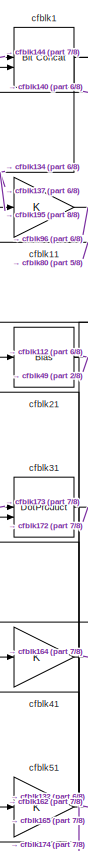
[diagram: root canvas - part 1/8, top left region]
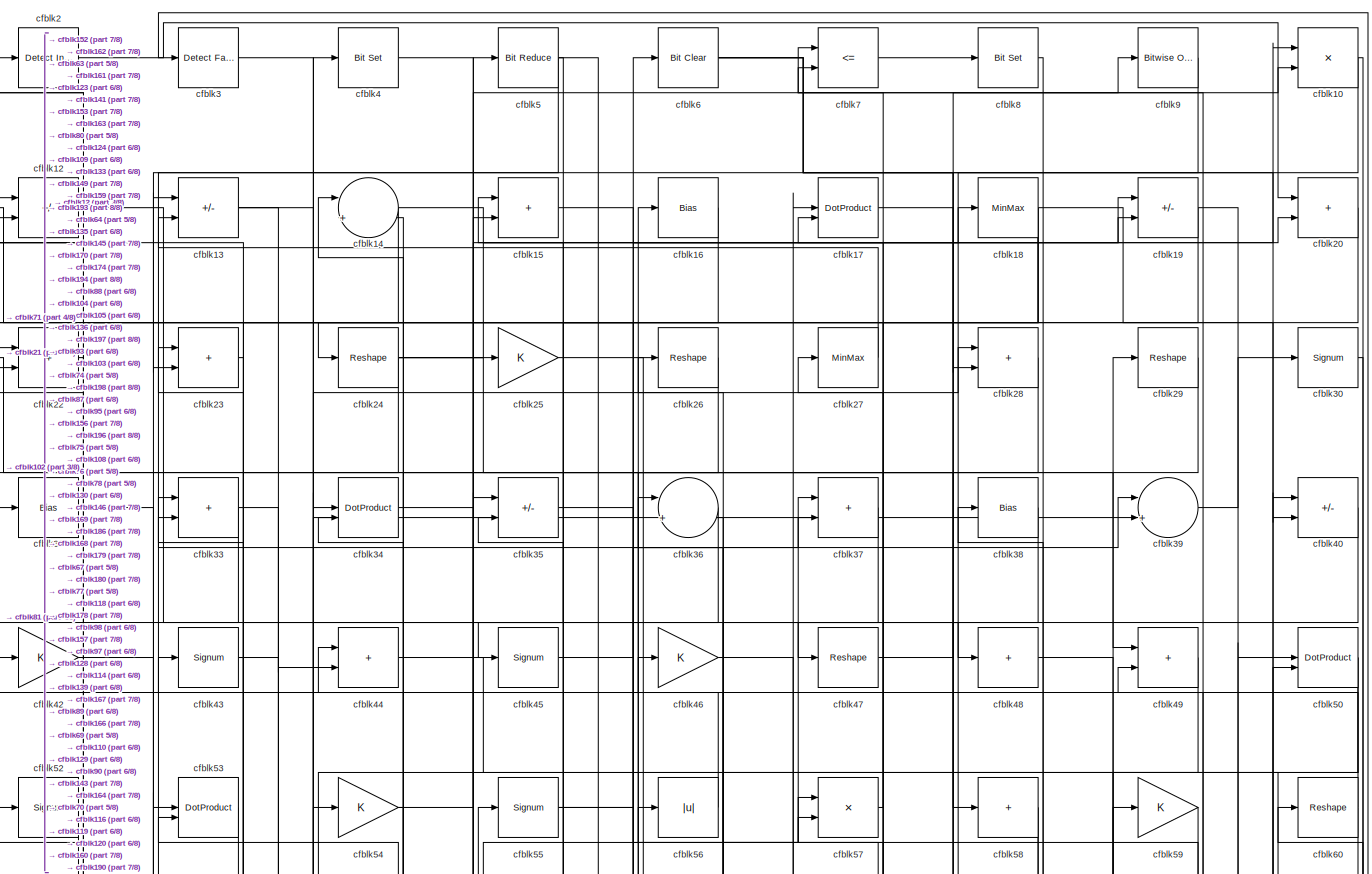
[diagram: root canvas - part 2/8, full width, top band]
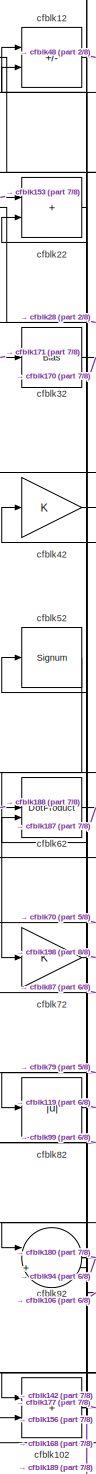
[diagram: root canvas - part 3/8, top left region]
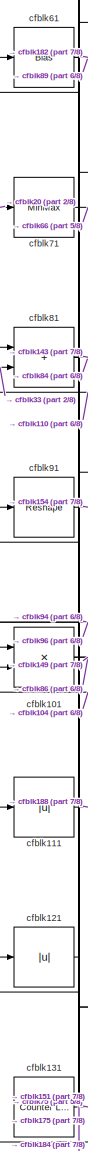
[diagram: root canvas - part 4/8, middle left region]
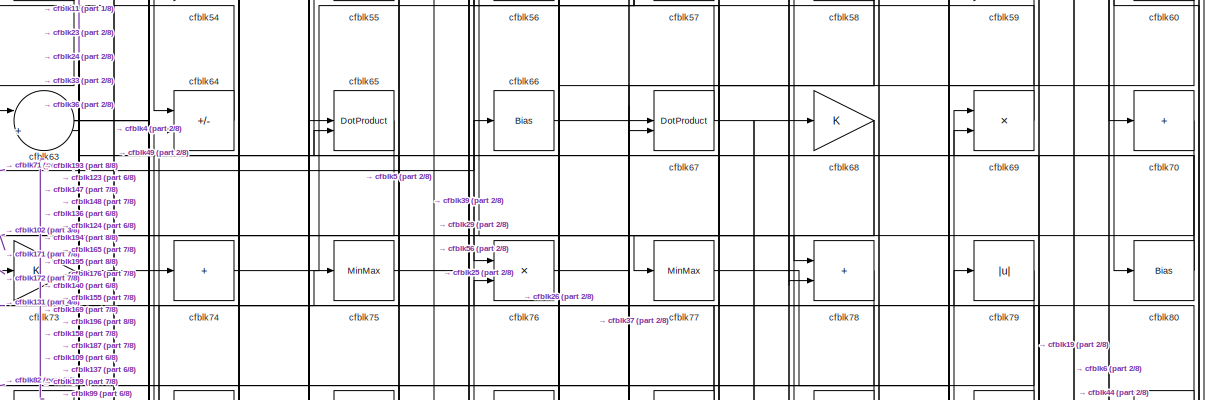
[diagram: root canvas - part 5/8, full width, middle band]
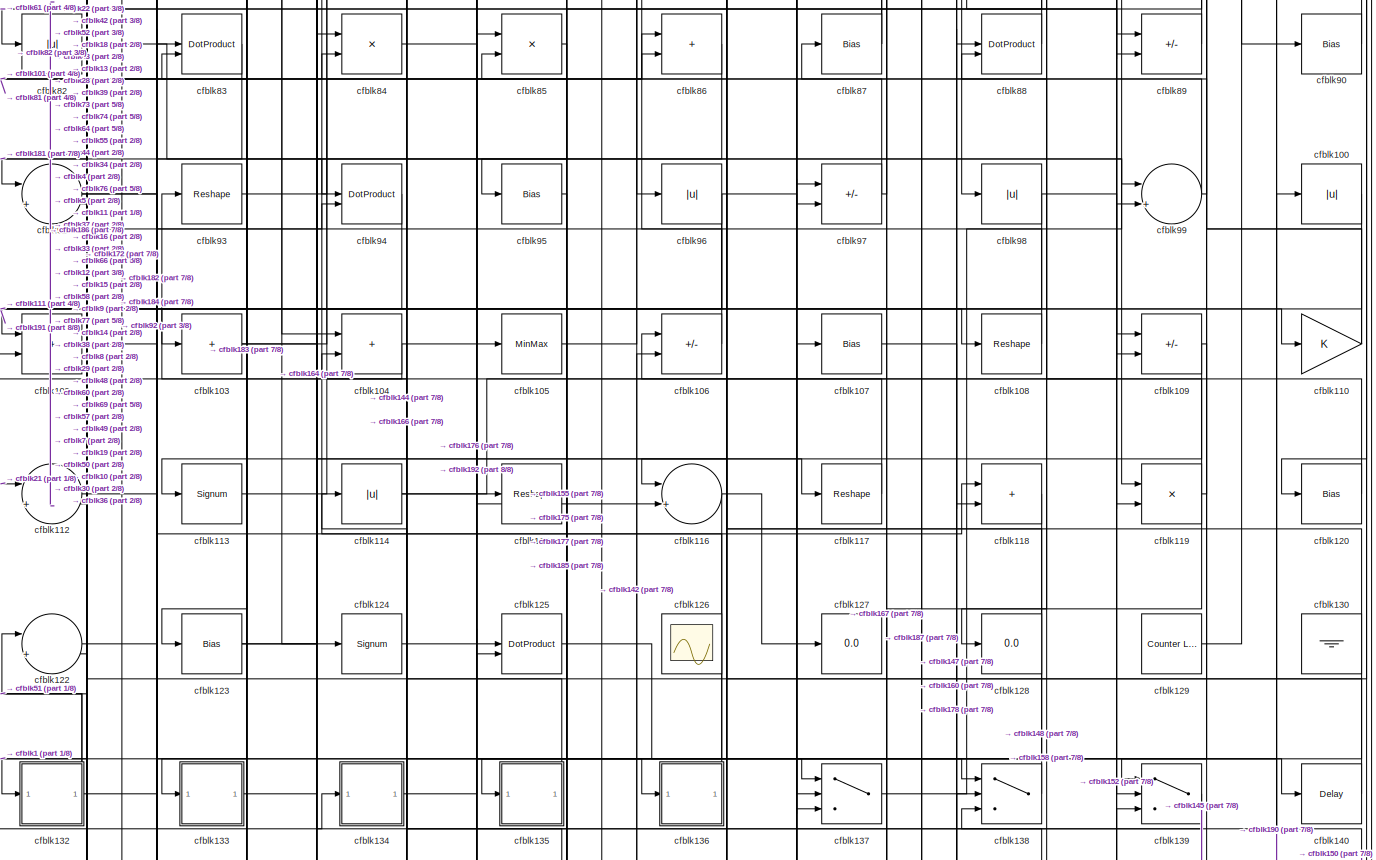
[diagram: root canvas - part 6/8, full width, middle band]
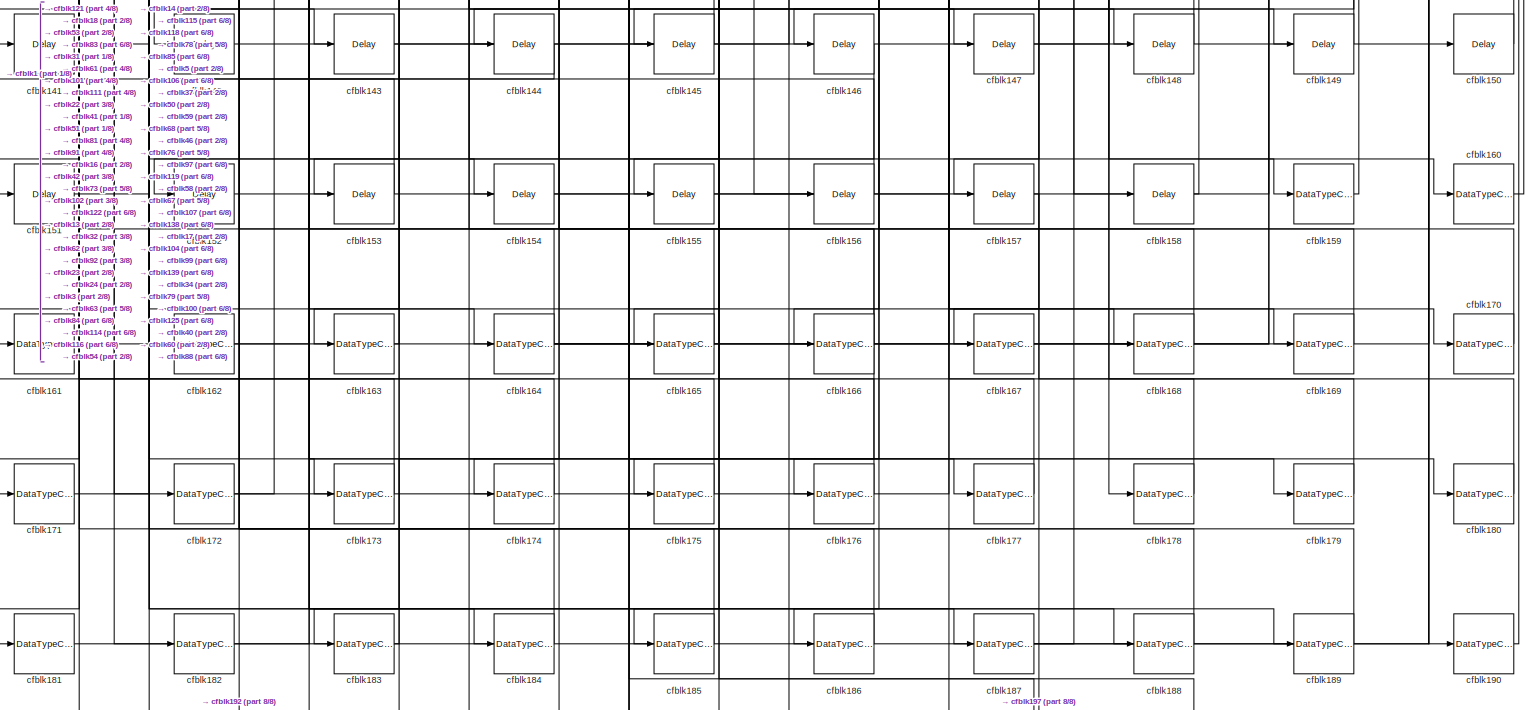
[diagram: root canvas - part 7/8, full width, bottom band]
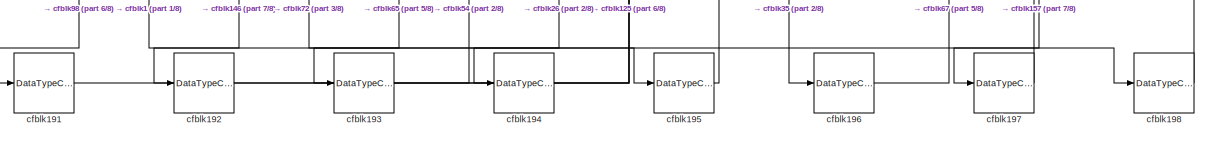
[diagram: root canvas - part 8/8, full width, bottom band]
MODEL slx_8a1410aba5ab
KIND model
CONFIG AbsTol = auto
CONFIG EnableMultiTasking = off
CONFIG FixedStep = auto
CONFIG MaxStep = auto
CONFIG MinStep = auto
CONFIG RelTol = 1e-3
CONFIG SampleTimeConstraint = Unconstrained
CONFIG SolverName = VariableStepAuto
CONFIG StartTime = 0.0
CONFIG StopTime = 10.0
BLOCK [Reference] cfblk1  REF=hdlsllib/Logic and Bit
Operations/Bit Concat
  SourceBlock = hdlsllib/Logic and Bit\nOperations/Bit Concat
  SourceType = Bit Concat
BLOCK [Product] cfblk10
  Inputs = */
  RndMeth = Zero
  SaturateOnIntegerOverflow = on
BLOCK [Abs] cfblk100
  SaturateOnIntegerOverflow = off
BLOCK [Product] cfblk101
  Inputs = */
  RndMeth = Zero
  SaturateOnIntegerOverflow = on
BLOCK [Sum] cfblk102
  IconShape = rectangular
BLOCK [Sum] cfblk103
  IconShape = rectangular
  Inputs = +
BLOCK [Sum] cfblk104
  IconShape = rectangular
BLOCK [MinMax] cfblk105
BLOCK [Sum] cfblk106
  IconShape = rectangular
  Inputs = +-
BLOCK [Bias] cfblk107
  Bias = 0.0
  SaturateOnIntegerOverflow = off
BLOCK [Reshape] cfblk108
BLOCK [Sum] cfblk109
  IconShape = rectangular
  Inputs = +-
BLOCK [Gain] cfblk11
BLOCK [Gain] cfblk110
BLOCK [Abs] cfblk111
  SaturateOnIntegerOverflow = off
BLOCK [Sum] cfblk112
  Inputs = |++
BLOCK [Signum] cfblk113
BLOCK [Abs] cfblk114
  SaturateOnIntegerOverflow = off
BLOCK [Reshape] cfblk115
BLOCK [Sum] cfblk116
  Inputs = |++
BLOCK [Reshape] cfblk117
BLOCK [Sum] cfblk118
  IconShape = rectangular
BLOCK [Product] cfblk119
  Inputs = */
  RndMeth = Zero
  SaturateOnIntegerOverflow = on
BLOCK [Sum] cfblk12
  IconShape = rectangular
  Inputs = +-
BLOCK [Bias] cfblk120
  Bias = 0.0
  SaturateOnIntegerOverflow = off
BLOCK [Abs] cfblk121
  SaturateOnIntegerOverflow = off
BLOCK [Sum] cfblk122
  Inputs = |++
BLOCK [Bias] cfblk123
  Bias = 0.0
  SaturateOnIntegerOverflow = off
BLOCK [Signum] cfblk124
BLOCK [DotProduct] cfblk125
  OutDataTypeStr = Inherit: Inherit via internal rule
BLOCK [Scope] cfblk126
  Floating = on
  NumInputPorts = 1
  ScopeSpecificationString = Simulink.scopes.TimeScopeBlockCfg('CurrentConfiguration', extmgr.ConfigurationSet(extmgr.Configuration('Core','General UI',true,'FigureColor',[0.156862745098039 0.156862745098039 0.156862745098039]),extmgr.Configuration('Core','Source UI',true),extmgr.Configuration('Sources','WiredSimulink',true,'DataLoggingVariableName','ScopeData1','DataLoggingSaveFormat','StructureWithTime','DataLoggingLimitDat...<+2713ch>
BLOCK [Display] cfblk127
  Decimation = 1
BLOCK [Display] cfblk128
  Decimation = 1
BLOCK [Reference] cfblk129  REF=hdlsllib/Sources/Counter
Limited
  SourceBlock = hdlsllib/Sources/Counter\nLimited
  SourceType = Counter Limited
BLOCK [Sum] cfblk13
  IconShape = rectangular
  Inputs = +-
BLOCK [Ground] cfblk130
BLOCK [Reference] cfblk131  REF=hdlsllib/Sources/Counter
Limited
  SourceBlock = hdlsllib/Sources/Counter\nLimited
  SourceType = Counter Limited
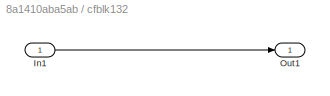
BLOCK [SubSystem] cfblk132
  LibrarySourceBlock = hdlsllib/Ports &\nSubsystems/Subsystem
BLOCK [Inport] cfblk132/In1
BLOCK [Outport] cfblk132/Out1
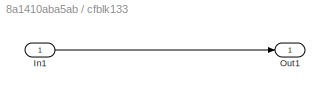
BLOCK [SubSystem] cfblk133
  LibrarySourceBlock = hdlsllib/Ports &\nSubsystems/Subsystem
BLOCK [Inport] cfblk133/In1
BLOCK [Outport] cfblk133/Out1
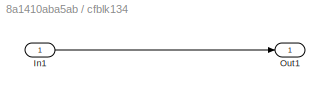
BLOCK [SubSystem] cfblk134
  LibrarySourceBlock = hdlsllib/Ports &\nSubsystems/Subsystem
BLOCK [Inport] cfblk134/In1
BLOCK [Outport] cfblk134/Out1
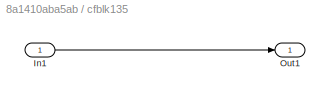
BLOCK [SubSystem] cfblk135
  LibrarySourceBlock = hdlsllib/Ports &\nSubsystems/Subsystem
BLOCK [Inport] cfblk135/In1
BLOCK [Outport] cfblk135/Out1
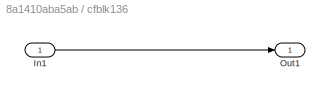
BLOCK [SubSystem] cfblk136
  LibrarySourceBlock = hdlsllib/Ports &\nSubsystems/Subsystem
BLOCK [Inport] cfblk136/In1
BLOCK [Outport] cfblk136/Out1
BLOCK [Switch] cfblk137
  InputSameDT = off
  SaturateOnIntegerOverflow = off
BLOCK [Switch] cfblk138
  InputSameDT = off
  SaturateOnIntegerOverflow = off
BLOCK [Switch] cfblk139
  InputSameDT = off
  SaturateOnIntegerOverflow = off
BLOCK [Sum] cfblk14
  Inputs = |++
BLOCK [Delay] cfblk140
  InputPortMap = u0
  SampleTime = 1
BLOCK [Delay] cfblk141
  InputPortMap = u0
  SampleTime = 1
BLOCK [Delay] cfblk142
  InputPortMap = u0
  SampleTime = 1
BLOCK [Delay] cfblk143
  InputPortMap = u0
  SampleTime = 1
BLOCK [Delay] cfblk144
  InputPortMap = u0
  SampleTime = 1
BLOCK [Delay] cfblk145
  InputPortMap = u0
  SampleTime = 1
BLOCK [Delay] cfblk146
  InputPortMap = u0
  SampleTime = 1
BLOCK [Delay] cfblk147
  InputPortMap = u0
  SampleTime = 1
BLOCK [Delay] cfblk148
  InputPortMap = u0
  SampleTime = 1
BLOCK [Delay] cfblk149
  InputPortMap = u0
  SampleTime = 1
BLOCK [Sum] cfblk15
  IconShape = rectangular
BLOCK [Delay] cfblk150
  InputPortMap = u0
  SampleTime = 1
BLOCK [Delay] cfblk151
  InputPortMap = u0
  SampleTime = 1
BLOCK [Delay] cfblk152
  InputPortMap = u0
  SampleTime = 1
BLOCK [Delay] cfblk153
  InputPortMap = u0
  SampleTime = 1
BLOCK [Delay] cfblk154
  InputPortMap = u0
  SampleTime = 1
BLOCK [Delay] cfblk155
  InputPortMap = u0
  SampleTime = 1
BLOCK [Delay] cfblk156
  InputPortMap = u0
  SampleTime = 1
BLOCK [Delay] cfblk157
  InputPortMap = u0
  SampleTime = 1
BLOCK [Delay] cfblk158
  InputPortMap = u0
  SampleTime = 1
BLOCK [DataTypeConversion] cfblk159
  OutDataTypeStr = uint8
  RndMeth = Floor
  SaturateOnIntegerOverflow = off
BLOCK [Bias] cfblk16
  Bias = 0.0
  SaturateOnIntegerOverflow = off
BLOCK [DataTypeConversion] cfblk160
  OutDataTypeStr = uint8
  RndMeth = Floor
  SaturateOnIntegerOverflow = off
BLOCK [DataTypeConversion] cfblk161
  OutDataTypeStr = uint8
  RndMeth = Floor
  SaturateOnIntegerOverflow = off
BLOCK [DataTypeConversion] cfblk162
  OutDataTypeStr = uint8
  RndMeth = Floor
  SaturateOnIntegerOverflow = off
BLOCK [DataTypeConversion] cfblk163
  OutDataTypeStr = uint8
  RndMeth = Floor
  SaturateOnIntegerOverflow = off
BLOCK [DataTypeConversion] cfblk164
  RndMeth = Floor
  SaturateOnIntegerOverflow = off
BLOCK [DataTypeConversion] cfblk165
  OutDataTypeStr = uint8
  RndMeth = Floor
  SaturateOnIntegerOverflow = off
BLOCK [DataTypeConversion] cfblk166
  RndMeth = Floor
  SaturateOnIntegerOverflow = off
BLOCK [DataTypeConversion] cfblk167
  OutDataTypeStr = uint8
  RndMeth = Floor
  SaturateOnIntegerOverflow = off
BLOCK [DataTypeConversion] cfblk168
  OutDataTypeStr = uint8
  RndMeth = Floor
  SaturateOnIntegerOverflow = off
BLOCK [DataTypeConversion] cfblk169
  OutDataTypeStr = uint8
  RndMeth = Floor
  SaturateOnIntegerOverflow = off
BLOCK [DotProduct] cfblk17
  OutDataTypeStr = Inherit: Inherit via internal rule
BLOCK [DataTypeConversion] cfblk170
  OutDataTypeStr = uint8
  RndMeth = Floor
  SaturateOnIntegerOverflow = off
BLOCK [DataTypeConversion] cfblk171
  OutDataTypeStr = uint8
  RndMeth = Floor
  SaturateOnIntegerOverflow = off
BLOCK [DataTypeConversion] cfblk172
  RndMeth = Floor
  SaturateOnIntegerOverflow = off
BLOCK [DataTypeConversion] cfblk173
  OutDataTypeStr = uint8
  RndMeth = Floor
  SaturateOnIntegerOverflow = off
BLOCK [DataTypeConversion] cfblk174
  OutDataTypeStr = uint8
  RndMeth = Floor
  SaturateOnIntegerOverflow = off
BLOCK [DataTypeConversion] cfblk175
  OutDataTypeStr = uint8
  RndMeth = Floor
  SaturateOnIntegerOverflow = off
BLOCK [DataTypeConversion] cfblk176
  OutDataTypeStr = uint8
  RndMeth = Floor
  SaturateOnIntegerOverflow = off
BLOCK [DataTypeConversion] cfblk177
  OutDataTypeStr = uint8
  RndMeth = Floor
  SaturateOnIntegerOverflow = off
BLOCK [DataTypeConversion] cfblk178
  OutDataTypeStr = uint8
  RndMeth = Floor
  SaturateOnIntegerOverflow = off
BLOCK [DataTypeConversion] cfblk179
  OutDataTypeStr = uint8
  RndMeth = Floor
  SaturateOnIntegerOverflow = off
BLOCK [MinMax] cfblk18
BLOCK [DataTypeConversion] cfblk180
  OutDataTypeStr = uint8
  RndMeth = Floor
  SaturateOnIntegerOverflow = off
BLOCK [DataTypeConversion] cfblk181
  OutDataTypeStr = uint8
  RndMeth = Floor
  SaturateOnIntegerOverflow = off
BLOCK [DataTypeConversion] cfblk182
  OutDataTypeStr = uint8
  RndMeth = Floor
  SaturateOnIntegerOverflow = off
BLOCK [DataTypeConversion] cfblk183
  OutDataTypeStr = uint8
  RndMeth = Floor
  SaturateOnIntegerOverflow = off
BLOCK [DataTypeConversion] cfblk184
  OutDataTypeStr = uint8
  RndMeth = Floor
  SaturateOnIntegerOverflow = off
BLOCK [DataTypeConversion] cfblk185
  OutDataTypeStr = uint8
  RndMeth = Floor
  SaturateOnIntegerOverflow = off
BLOCK [DataTypeConversion] cfblk186
  OutDataTypeStr = uint8
  RndMeth = Floor
  SaturateOnIntegerOverflow = off
BLOCK [DataTypeConversion] cfblk187
  RndMeth = Floor
  SaturateOnIntegerOverflow = off
BLOCK [DataTypeConversion] cfblk188
  OutDataTypeStr = uint8
  RndMeth = Floor
  SaturateOnIntegerOverflow = off
BLOCK [DataTypeConversion] cfblk189
  OutDataTypeStr = uint8
  RndMeth = Floor
  SaturateOnIntegerOverflow = off
BLOCK [Sum] cfblk19
  IconShape = rectangular
  Inputs = +-
BLOCK [DataTypeConversion] cfblk190
  OutDataTypeStr = uint8
  RndMeth = Floor
  SaturateOnIntegerOverflow = off
BLOCK [DataTypeConversion] cfblk191
  OutDataTypeStr = uint8
  RndMeth = Floor
  SaturateOnIntegerOverflow = off
BLOCK [DataTypeConversion] cfblk192
  OutDataTypeStr = uint8
  RndMeth = Floor
  SaturateOnIntegerOverflow = off
BLOCK [DataTypeConversion] cfblk193
  OutDataTypeStr = uint8
  RndMeth = Floor
  SaturateOnIntegerOverflow = off
BLOCK [DataTypeConversion] cfblk194
  OutDataTypeStr = uint8
  RndMeth = Floor
  SaturateOnIntegerOverflow = off
BLOCK [DataTypeConversion] cfblk195
  OutDataTypeStr = uint8
  RndMeth = Floor
  SaturateOnIntegerOverflow = off
BLOCK [DataTypeConversion] cfblk196
  OutDataTypeStr = uint8
  RndMeth = Floor
  SaturateOnIntegerOverflow = off
BLOCK [DataTypeConversion] cfblk197
  OutDataTypeStr = uint8
  RndMeth = Floor
  SaturateOnIntegerOverflow = off
BLOCK [DataTypeConversion] cfblk198
  OutDataTypeStr = uint8
  RndMeth = Floor
  SaturateOnIntegerOverflow = off
BLOCK [Reference] cfblk2  REF=simulink/Logic and Bit
Operations/Detect
Increase
  LibrarySourceBlock = hdlsllib/Logic and Bit\nOperations/Detect\nIncrease
  SourceBlock = simulink/Logic and Bit\nOperations/Detect\nIncrease
  SourceType = Detect Increase
BLOCK [Sum] cfblk20
  IconShape = rectangular
BLOCK [Bias] cfblk21
  Bias = 0.0
  SaturateOnIntegerOverflow = off
BLOCK [Sum] cfblk22
  IconShape = rectangular
BLOCK [Sum] cfblk23
  IconShape = rectangular
BLOCK [Reshape] cfblk24
BLOCK [Gain] cfblk25
BLOCK [Reshape] cfblk26
BLOCK [MinMax] cfblk27
BLOCK [Sum] cfblk28
  IconShape = rectangular
BLOCK [Reshape] cfblk29
BLOCK [Reference] cfblk3  REF=hdlsllib/Logic and Bit
Operations/Detect Fall
Nonpositive
  SourceBlock = hdlsllib/Logic and Bit\nOperations/Detect Fall\nNonpositive
  SourceType = Detect Fall Nonpositive
BLOCK [Signum] cfblk30
BLOCK [DotProduct] cfblk31
  OutDataTypeStr = Inherit: Inherit via internal rule
BLOCK [Bias] cfblk32
  Bias = 0.0
  SaturateOnIntegerOverflow = off
BLOCK [Sum] cfblk33
  IconShape = rectangular
BLOCK [DotProduct] cfblk34
  OutDataTypeStr = Inherit: Inherit via internal rule
BLOCK [Sum] cfblk35
  IconShape = rectangular
  Inputs = +-
BLOCK [Sum] cfblk36
  Inputs = |++
BLOCK [Sum] cfblk37
  IconShape = rectangular
BLOCK [Bias] cfblk38
  Bias = 0.0
  SaturateOnIntegerOverflow = off
BLOCK [Sum] cfblk39
  Inputs = |++
BLOCK [Reference] cfblk4  REF=simulink/Logic and Bit
Operations/Bit Set
  LibrarySourceBlock = hdlsllib/Logic and Bit\nOperations/Bit Set
  SourceBlock = simulink/Logic and Bit\nOperations/Bit Set
  SourceType = Bit Set
BLOCK [Sum] cfblk40
  IconShape = rectangular
  Inputs = +-
BLOCK [Gain] cfblk41
BLOCK [Gain] cfblk42
BLOCK [Signum] cfblk43
BLOCK [Sum] cfblk44
  IconShape = rectangular
BLOCK [Signum] cfblk45
BLOCK [Gain] cfblk46
BLOCK [Reshape] cfblk47
BLOCK [Sum] cfblk48
  IconShape = rectangular
  Inputs = +
BLOCK [Sum] cfblk49
  IconShape = rectangular
BLOCK [Reference] cfblk5  REF=hdlsllib/Logic and Bit
Operations/Bit Reduce
  SourceBlock = hdlsllib/Logic and Bit\nOperations/Bit Reduce
  SourceType = Bit Reduce
BLOCK [DotProduct] cfblk50
  OutDataTypeStr = Inherit: Inherit via internal rule
BLOCK [Gain] cfblk51
BLOCK [Signum] cfblk52
BLOCK [DotProduct] cfblk53
  OutDataTypeStr = Inherit: Inherit via internal rule
BLOCK [Gain] cfblk54
BLOCK [Signum] cfblk55
BLOCK [Abs] cfblk56
  SaturateOnIntegerOverflow = off
BLOCK [Product] cfblk57
  Inputs = */
  RndMeth = Zero
  SaturateOnIntegerOverflow = on
BLOCK [Sum] cfblk58
  IconShape = rectangular
  Inputs = +
BLOCK [Gain] cfblk59
BLOCK [Reference] cfblk6  REF=simulink/Logic and Bit
Operations/Bit Clear
  LibrarySourceBlock = hdlsllib/Logic and Bit\nOperations/Bit Clear
  SourceBlock = simulink/Logic and Bit\nOperations/Bit Clear
  SourceType = Bit Clear
BLOCK [Reshape] cfblk60
BLOCK [Bias] cfblk61
  Bias = 0.0
  SaturateOnIntegerOverflow = off
BLOCK [DotProduct] cfblk62
  OutDataTypeStr = Inherit: Inherit via internal rule
BLOCK [Sum] cfblk63
  Inputs = |++
BLOCK [Sum] cfblk64
  IconShape = rectangular
  Inputs = +-
BLOCK [DotProduct] cfblk65
  OutDataTypeStr = Inherit: Inherit via internal rule
BLOCK [Bias] cfblk66
  Bias = 0.0
  SaturateOnIntegerOverflow = off
BLOCK [DotProduct] cfblk67
  OutDataTypeStr = Inherit: Inherit via internal rule
BLOCK [Gain] cfblk68
BLOCK [Product] cfblk69
  Inputs = */
  RndMeth = Zero
  SaturateOnIntegerOverflow = on
BLOCK [RelationalOperator] cfblk7
  InputSameDT = off
  Operator = <=
  OutDataTypeStr = boolean
BLOCK [Sum] cfblk70
  IconShape = rectangular
  Inputs = +
BLOCK [MinMax] cfblk71
BLOCK [Gain] cfblk72
BLOCK [Gain] cfblk73
BLOCK [Sum] cfblk74
  IconShape = rectangular
  Inputs = +
BLOCK [MinMax] cfblk75
BLOCK [Product] cfblk76
  Inputs = */
  RndMeth = Zero
  SaturateOnIntegerOverflow = on
BLOCK [MinMax] cfblk77
BLOCK [Sum] cfblk78
  IconShape = rectangular
BLOCK [Abs] cfblk79
  SaturateOnIntegerOverflow = off
BLOCK [Reference] cfblk8  REF=simulink/Logic and Bit
Operations/Bit Set
  LibrarySourceBlock = hdlsllib/Logic and Bit\nOperations/Bit Set
  SourceBlock = simulink/Logic and Bit\nOperations/Bit Set
  SourceType = Bit Set
BLOCK [Bias] cfblk80
  Bias = 0.0
  SaturateOnIntegerOverflow = off
BLOCK [Sum] cfblk81
  IconShape = rectangular
BLOCK [Abs] cfblk82
  SaturateOnIntegerOverflow = off
BLOCK [DotProduct] cfblk83
  OutDataTypeStr = Inherit: Inherit via internal rule
BLOCK [Product] cfblk84
  Inputs = */
  RndMeth = Zero
  SaturateOnIntegerOverflow = on
BLOCK [Product] cfblk85
  Inputs = */
  RndMeth = Zero
  SaturateOnIntegerOverflow = on
BLOCK [Sum] cfblk86
  IconShape = rectangular
BLOCK [Bias] cfblk87
  Bias = 0.0
  SaturateOnIntegerOverflow = off
BLOCK [DotProduct] cfblk88
  OutDataTypeStr = Inherit: Inherit via internal rule
BLOCK [Sum] cfblk89
  IconShape = rectangular
  Inputs = +-
BLOCK [Reference] cfblk9  REF=simulink/Logic and Bit
Operations/Bitwise
Operator
  LibrarySourceBlock = hdlsllib/Logic and Bit\nOperations/Bitwise\nOperator
  SourceBlock = simulink/Logic and Bit\nOperations/Bitwise\nOperator
  SourceType = Bitwise Operator
BLOCK [Bias] cfblk90
  Bias = 0.0
  SaturateOnIntegerOverflow = off
BLOCK [Reshape] cfblk91
BLOCK [Sum] cfblk92
  Inputs = |++
BLOCK [Reshape] cfblk93
BLOCK [DotProduct] cfblk94
  OutDataTypeStr = Inherit: Inherit via internal rule
BLOCK [Bias] cfblk95
  Bias = 0.0
  SaturateOnIntegerOverflow = off
BLOCK [Abs] cfblk96
  SaturateOnIntegerOverflow = off
BLOCK [Sum] cfblk97
  IconShape = rectangular
  Inputs = +-
BLOCK [Abs] cfblk98
  SaturateOnIntegerOverflow = off
BLOCK [Sum] cfblk99
  Inputs = |++
LINE cfblk100:1 -> cfblk132:1
NET cfblk101:1 -> cfblk149:1, cfblk86:2
NET cfblk102:1 -> cfblk12:1, cfblk177:1
NET cfblk103:1 -> cfblk117:1, cfblk55:1
NET cfblk104:1 -> cfblk101:2, cfblk19:1
LINE cfblk105:1 -> cfblk37:2
LINE cfblk106:1 -> cfblk52:1
LINE cfblk107:1 -> cfblk160:1
LINE cfblk108:1 -> cfblk16:1
NET cfblk109:1 -> cfblk113:1, cfblk139:1
NET cfblk10:1 -> cfblk120:1, cfblk23:2
NET cfblk110:1 -> cfblk7:2, cfblk81:1
LINE cfblk111:1 -> cfblk188:1
LINE cfblk112:1 -> cfblk137:1
LINE cfblk113:1 -> cfblk86:1
NET cfblk114:1 -> cfblk116:2, cfblk29:1
LINE cfblk115:1 -> cfblk185:1
NET cfblk116:1 -> cfblk127:1, cfblk144:1
LINE cfblk117:1 -> cfblk93:1
LINE cfblk118:1 -> cfblk155:1
NET cfblk119:1 -> cfblk167:1, cfblk36:2, cfblk49:2
LINE cfblk11:1 -> cfblk96:1
LINE cfblk120:1 -> cfblk38:1
LINE cfblk121:1 -> cfblk151:1
LINE cfblk122:1 -> cfblk184:1
NET cfblk123:1 -> cfblk28:1, cfblk74:1
LINE cfblk124:1 -> cfblk76:2
LINE cfblk125:1 -> cfblk190:1
LINE cfblk129:1 -> cfblk50:1
LINE cfblk12:1 -> cfblk48:1
NET cfblk130:1 -> cfblk137:2, cfblk33:1
LINE cfblk131:1 -> cfblk75:1
LINE cfblk132/In1:1 -> cfblk132/Out1:1
NET cfblk132:1 -> cfblk118:1, cfblk21:1, cfblk51:1
LINE cfblk133/In1:1 -> cfblk133/Out1:1
LINE cfblk133:1 -> cfblk39:2
LINE cfblk134/In1:1 -> cfblk134/Out1:1
LINE cfblk134:1 -> cfblk138:1
LINE cfblk135/In1:1 -> cfblk135/Out1:1
LINE cfblk135:1 -> cfblk44:1
LINE cfblk136/In1:1 -> cfblk136/Out1:1
LINE cfblk136:1 -> cfblk64:2
LINE cfblk137:1 -> cfblk69:1
LINE cfblk138:1 -> cfblk106:1
LINE cfblk139:1 -> cfblk145:1
NET cfblk13:1 -> cfblk104:1, cfblk109:2
LINE cfblk140:1 -> cfblk1:2
LINE cfblk141:1 -> cfblk173:1
LINE cfblk142:1 -> cfblk106:2
LINE cfblk143:1 -> cfblk40:1
LINE cfblk144:1 -> cfblk1:1
LINE cfblk145:1 -> cfblk14:1
LINE cfblk146:1 -> cfblk192:1
LINE cfblk147:1 -> cfblk138:2
LINE cfblk148:1 -> cfblk104:2
LINE cfblk149:1 -> cfblk34:1
NET cfblk14:1 -> cfblk18:1, cfblk24:1
LINE cfblk150:1 -> cfblk88:2
LINE cfblk151:1 -> cfblk189:1
LINE cfblk152:1 -> cfblk99:2
LINE cfblk153:1 -> cfblk22:1
LINE cfblk154:1 -> cfblk179:1
LINE cfblk155:1 -> cfblk67:2
LINE cfblk156:1 -> cfblk92:2
LINE cfblk157:1 -> cfblk197:1
LINE cfblk158:1 -> cfblk138:3
LINE cfblk159:1 -> cfblk79:1
LINE cfblk15:1 -> cfblk20:2
LINE cfblk160:1 -> cfblk3:1
LINE cfblk161:1 -> cfblk5:1
LINE cfblk162:1 -> cfblk53:1
LINE cfblk163:1 -> cfblk53:2
NET cfblk164:1 -> cfblk107:1, cfblk139:3, cfblk50:2, cfblk84:1
LINE cfblk165:1 -> cfblk41:1
NET cfblk166:1 -> cfblk114:1, cfblk13:1, cfblk183:1
LINE cfblk167:1 -> cfblk59:1
LINE cfblk168:1 -> cfblk42:1
LINE cfblk169:1 -> cfblk46:1
LINE cfblk16:1 -> cfblk152:1
LINE cfblk170:1 -> cfblk34:2
LINE cfblk171:1 -> cfblk32:1
NET cfblk172:1 -> cfblk73:1, cfblk97:1
LINE cfblk173:1 -> cfblk31:1
LINE cfblk174:1 -> cfblk31:2
LINE cfblk175:1 -> cfblk91:1
LINE cfblk176:1 -> cfblk85:1
LINE cfblk177:1 -> cfblk85:2
LINE cfblk178:1 -> cfblk88:1
LINE cfblk179:1 -> cfblk17:1
LINE cfblk17:1 -> cfblk178:1
LINE cfblk180:1 -> cfblk17:2
LINE cfblk181:1 -> cfblk150:1
LINE cfblk182:1 -> cfblk83:1
LINE cfblk183:1 -> cfblk83:2
LINE cfblk184:1 -> cfblk121:1
LINE cfblk185:1 -> cfblk122:1
LINE cfblk186:1 -> cfblk122:2
NET cfblk187:1 -> cfblk100:1, cfblk68:1
LINE cfblk188:1 -> cfblk62:1
LINE cfblk189:1 -> cfblk62:2
NET cfblk18:1 -> cfblk103:1, cfblk141:1, cfblk40:2, cfblk45:1
LINE cfblk190:1 -> cfblk60:1
LINE cfblk191:1 -> cfblk125:1
LINE cfblk192:1 -> cfblk125:2
LINE cfblk193:1 -> cfblk54:1
LINE cfblk194:1 -> cfblk65:1
LINE cfblk195:1 -> cfblk65:2
LINE cfblk196:1 -> cfblk67:1
LINE cfblk197:1 -> cfblk35:1
LINE cfblk198:1 -> cfblk35:2
NET cfblk19:1 -> cfblk77:1, cfblk90:1
NET cfblk1:1 -> cfblk134:1, cfblk137:3, cfblk195:1
LINE cfblk20:1 -> cfblk71:1
NET cfblk21:1 -> cfblk112:1, cfblk49:1
LINE cfblk22:1 -> cfblk92:1
LINE cfblk23:1 -> cfblk153:1
NET cfblk24:1 -> cfblk10:1, cfblk163:1, cfblk25:1, cfblk78:2
LINE cfblk25:1 -> cfblk78:1
LINE cfblk26:1 -> cfblk194:1
LINE cfblk27:1 -> cfblk13:2
LINE cfblk28:1 -> cfblk102:2
LINE cfblk29:1 -> cfblk76:1
LINE cfblk2:1 -> cfblk20:1
LINE cfblk30:1 -> cfblk116:1
LINE cfblk31:1 -> cfblk172:1
LINE cfblk32:1 -> cfblk170:1
NET cfblk33:1 -> cfblk44:2, cfblk81:2
LINE cfblk34:1 -> cfblk136:1
LINE cfblk35:1 -> cfblk196:1
LINE cfblk36:1 -> cfblk63:2
LINE cfblk37:1 -> cfblk146:1
LINE cfblk38:1 -> cfblk118:2
LINE cfblk39:1 -> cfblk30:1
LINE cfblk3:1 -> cfblk159:1
LINE cfblk40:1 -> cfblk47:1
LINE cfblk41:1 -> cfblk164:1
NET cfblk42:1 -> cfblk142:1, cfblk94:1
NET cfblk43:1 -> cfblk123:1, cfblk124:1
LINE cfblk44:1 -> cfblk80:1
LINE cfblk45:1 -> cfblk6:1
LINE cfblk46:1 -> cfblk168:1
LINE cfblk47:1 -> cfblk9:1
LINE cfblk48:1 -> cfblk89:1
LINE cfblk49:1 -> cfblk64:1
LINE cfblk4:1 -> cfblk105:1
NET cfblk50:1 -> cfblk139:2, cfblk186:1
LINE cfblk51:1 -> cfblk162:1
LINE cfblk52:1 -> cfblk72:1
LINE cfblk53:1 -> cfblk161:1
NET cfblk54:1 -> cfblk10:2, cfblk174:1
NET cfblk55:1 -> cfblk19:2, cfblk57:2
LINE cfblk56:1 -> cfblk2:1
LINE cfblk57:1 -> cfblk27:1
NET cfblk58:1 -> cfblk157:1, cfblk97:2
LINE cfblk59:1 -> cfblk166:1
NET cfblk5:1 -> cfblk156:1, cfblk63:1, cfblk95:1
NET cfblk60:1 -> cfblk119:2, cfblk43:1
NET cfblk61:1 -> cfblk182:1, cfblk89:2
LINE cfblk62:1 -> cfblk187:1
NET cfblk63:1 -> cfblk147:1, cfblk148:1, cfblk4:1
LINE cfblk64:1 -> cfblk33:2
LINE cfblk65:1 -> cfblk193:1
LINE cfblk66:1 -> cfblk140:1
NET cfblk67:1 -> cfblk158:1, cfblk26:1
NET cfblk68:1 -> cfblk171:1, cfblk176:1
LINE cfblk69:1 -> cfblk56:1
NET cfblk6:1 -> cfblk28:2, cfblk58:1, cfblk70:1
LINE cfblk70:1 -> cfblk102:1
LINE cfblk71:1 -> cfblk66:1
LINE cfblk72:1 -> cfblk198:1
LINE cfblk73:1 -> cfblk99:1
LINE cfblk74:1 -> cfblk37:1
LINE cfblk75:1 -> cfblk39:1
LINE cfblk76:1 -> cfblk169:1
LINE cfblk77:1 -> cfblk109:1
LINE cfblk78:1 -> cfblk165:1
LINE cfblk79:1 -> cfblk82:1
LINE cfblk7:1 -> cfblk8:1
NET cfblk80:1 -> cfblk11:1, cfblk23:1
NET cfblk81:1 -> cfblk143:1, cfblk61:1, cfblk84:2
LINE cfblk82:1 -> cfblk119:1
LINE cfblk83:1 -> cfblk181:1
LINE cfblk84:1 -> cfblk115:1
LINE cfblk85:1 -> cfblk175:1
LINE cfblk86:1 -> cfblk133:1
NET cfblk87:1 -> cfblk12:2, cfblk15:1
LINE cfblk88:1 -> cfblk14:2
LINE cfblk89:1 -> cfblk57:1
LINE cfblk8:1 -> cfblk128:1
LINE cfblk90:1 -> cfblk36:1
LINE cfblk91:1 -> cfblk154:1
NET cfblk92:1 -> cfblk180:1, cfblk94:2
LINE cfblk93:1 -> cfblk15:2
LINE cfblk94:1 -> cfblk111:1
LINE cfblk95:1 -> cfblk135:1
NET cfblk96:1 -> cfblk101:1, cfblk108:1, cfblk112:2
NET cfblk97:1 -> cfblk7:1, cfblk87:1
NET cfblk98:1 -> cfblk110:1, cfblk191:1
NET cfblk99:1 -> cfblk22:2, cfblk69:2
LINE cfblk9:1 -> cfblk98:1
note: NET lines group one-source signal fan-out (src -> all destinations, sorted); 1:1 wires keep LINE
